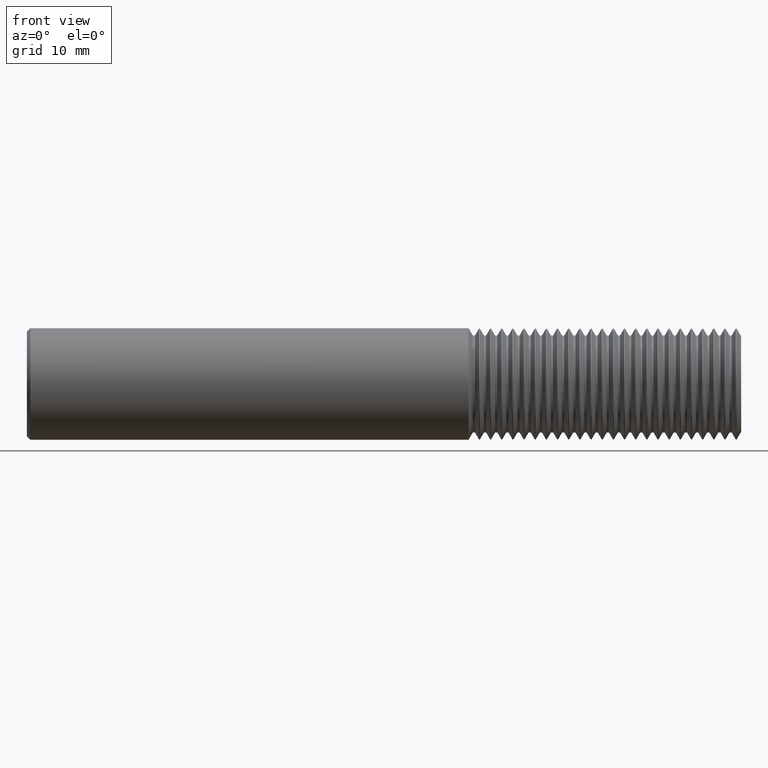
[diagram: clean part render]
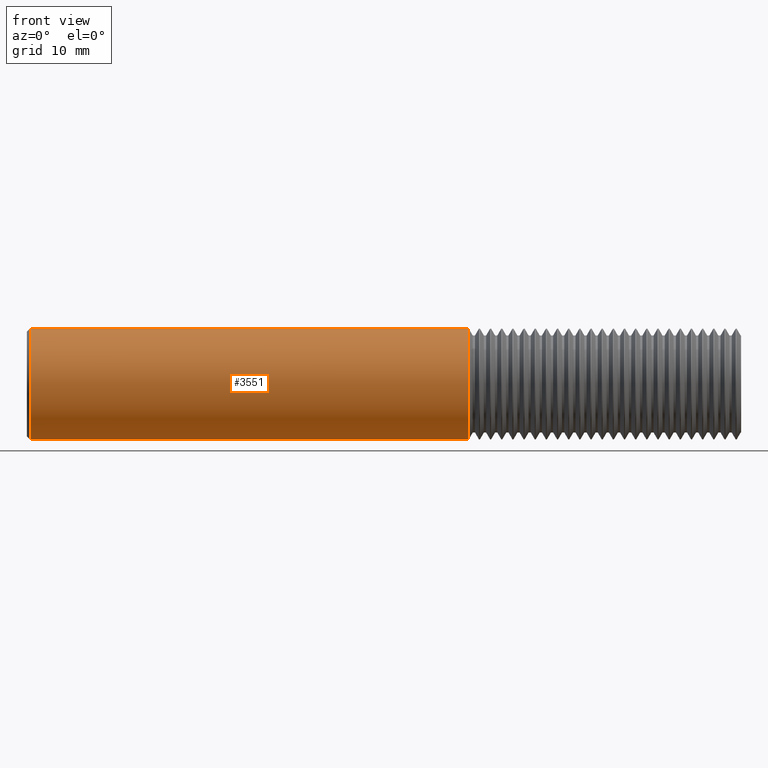
[diagram: same view with one face highlighted and labeled with its STEP entity id]
A machine part, front view. The second image highlights one B-rep face of the part: STEP entity #3551.
In plain terms, the highlighted cylindrical surface (partial cylindrical patch) has radius 7.9337 mm, axis along (1, -0, -0).
Its self-contained STEP definition (entity closure, byte-faithful):
#126 = VECTOR ( 'NONE', #2028, 39.37007874015748143 ) ;
#178 = AXIS2_PLACEMENT_3D ( 'NONE', #2474, #885, #4809 ) ;
#223 = ORIENTED_EDGE ( 'NONE', *, *, #2919, .F. ) ;
#415 = FACE_OUTER_BOUND ( 'NONE', #2480, .T. ) ;
#499 = VERTEX_POINT ( 'NONE', #2354 ) ;
#706 = ORIENTED_EDGE ( 'NONE', *, *, #1424, .T. ) ;
#796 = DIRECTION ( 'NONE',  ( 0.000000000000000000, 0.000000000000000000, -1.000000000000000000 ) ) ;
#885 = DIRECTION ( 'NONE',  ( 1.000000000000000000, -0.000000000000000000, -0.000000000000000000 ) ) ;
#1424 = EDGE_CURVE ( 'NONE', #3957, #499, #2085, .T. ) ;
#1538 = CARTESIAN_POINT ( 'NONE',  ( 4.000000000000000000, 3.825184277136757839E-17, 0.3123500000000000165 ) ) ;
#1611 = AXIS2_PLACEMENT_3D ( 'NONE', #4406, #1999, #796 ) ;
#1637 = CYLINDRICAL_SURFACE ( 'NONE', #1611, 0.3123500000000000165 ) ;
#1742 = DIRECTION ( 'NONE',  ( -1.000000000000000000, -0.000000000000000000, -0.000000000000000000 ) ) ;
#1999 = DIRECTION ( 'NONE',  ( 1.000000000000000000, -0.000000000000000000, -0.000000000000000000 ) ) ;
#2026 = CARTESIAN_POINT ( 'NONE',  ( 0.02000000000000033348, 3.825184277136757839E-17, 0.3123500000000000165 ) ) ;
#2028 = DIRECTION ( 'NONE',  ( 1.000000000000000000, -0.000000000000000000, -0.000000000000000000 ) ) ;
#2085 = CIRCLE ( 'NONE', #178, 0.3123500000000000165 ) ;
#2293 = CIRCLE ( 'NONE', #4452, 0.3123500000000000165 ) ;
#2354 = CARTESIAN_POINT ( 'NONE',  ( 0.02000000000000033348, 0.000000000000000000, -0.3123500000000000165 ) ) ;
#2374 = VERTEX_POINT ( 'NONE', #2619 ) ;
#2474 = CARTESIAN_POINT ( 'NONE',  ( 0.02000000000000033348, 0.000000000000000000, 0.000000000000000000 ) ) ;
#2480 = EDGE_LOOP ( 'NONE', ( #223, #706, #4217, #3641 ) ) ;
#2619 = CARTESIAN_POINT ( 'NONE',  ( 2.473484135958313956, 3.825184277136755990E-17, -0.3123499999999999055 ) ) ;
#2658 = CARTESIAN_POINT ( 'NONE',  ( 2.473484135958313956, 0.000000000000000000, 0.000000000000000000 ) ) ;
#2685 = LINE ( 'NONE', #1538, #3266 ) ;
#2919 = EDGE_CURVE ( 'NONE', #3957, #4811, #2685, .T. ) ;
#3127 = DIRECTION ( 'NONE',  ( 1.000000000000000000, -0.000000000000000000, -0.000000000000000000 ) ) ;
#3207 = LINE ( 'NONE', #3295, #126 ) ;
#3234 = DIRECTION ( 'NONE',  ( 0.000000000000000000, 0.000000000000000000, 1.000000000000000000 ) ) ;
#3266 = VECTOR ( 'NONE', #3127, 39.37007874015748143 ) ;
#3295 = CARTESIAN_POINT ( 'NONE',  ( 4.000000000000000000, 0.000000000000000000, -0.3123500000000000165 ) ) ;
#3551 = ADVANCED_FACE ( 'NONE', ( #415 ), #1637, .T. ) ;
#3557 = EDGE_CURVE ( 'NONE', #499, #2374, #3207, .T. ) ;
#3641 = ORIENTED_EDGE ( 'NONE', *, *, #5072, .T. ) ;
#3957 = VERTEX_POINT ( 'NONE', #2026 ) ;
#4217 = ORIENTED_EDGE ( 'NONE', *, *, #3557, .T. ) ;
#4406 = CARTESIAN_POINT ( 'NONE',  ( 4.000000000000000000, 0.000000000000000000, 0.000000000000000000 ) ) ;
#4452 = AXIS2_PLACEMENT_3D ( 'NONE', #2658, #1742, #3234 ) ;
#4551 = CARTESIAN_POINT ( 'NONE',  ( 2.473484135958313956, 0.000000000000000000, 0.3123499999999999055 ) ) ;
#4809 = DIRECTION ( 'NONE',  ( 0.000000000000000000, 0.000000000000000000, 1.000000000000000000 ) ) ;
#4811 = VERTEX_POINT ( 'NONE', #4551 ) ;
#5072 = EDGE_CURVE ( 'NONE', #2374, #4811, #2293, .T. ) ;